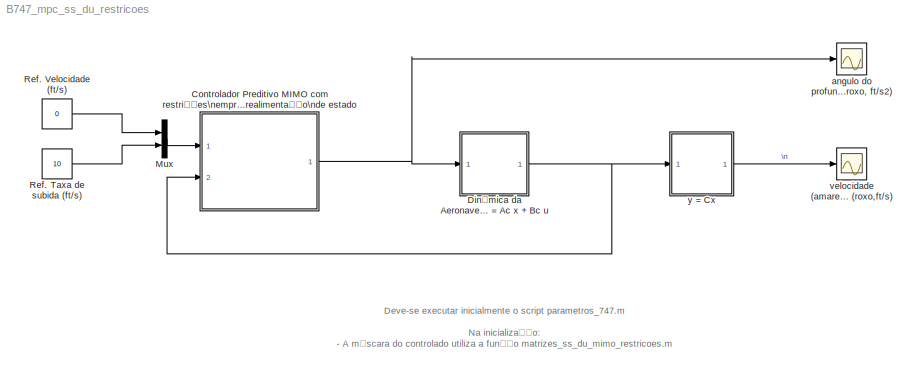
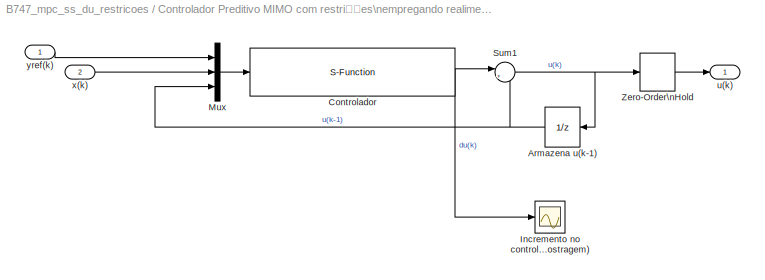
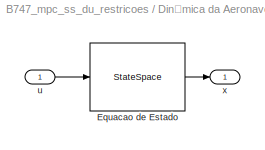
MODEL B747_mpc_ss_du_restricoes
KIND model
BLOCK [SubSystem] Controlador Preditivo MIMO com restrições\nempregando realimentação\nde estado
  FunctionWithSeparateData = off
  MaskCallbackString = ||||||||||
  MaskEnableString = on,on,on,on,on,on,on,on,on,on,on
  MaskHideContents = off
  MaskIconFrame = on
  MaskIconOpaque = on
  MaskIconRotate = none
  MaskIconUnits = autoscale
  MaskInitialization = [Phi,Gn,Hqp,Aqp] = matrizes_ss_du_mimo_restricoes(A,B,C,N,M,mu,rho);\nn = size(A,1);\np = size(B,2);\nq = size(C,1);\numin = ulim(:,1);\numax = ulim(:,2);\ndumin = dulim(:,1);\ndumax = dulim(:,2);\nymin = ylim(:,1);\nymax = ylim(:,2);
  MaskPortRotate = default
  MaskPromptString = Pesos dos controle (rho) (p x 1)|Pesos das saídas mu (q x 1)|Horizonte de Predição (N)|Horizonte de Controle (M)|Matriz A (n x n)|Matriz B (n x p)|Matriz C (q x n)|[dumin, dumax] (p x 2)|[umin, umax] (p x 2)|[ymin, ymax] (q x 2)|Periodo de amostragem
  MaskStyleString = edit,edit,edit,edit,edit,edit,edit,edit,edit,edit,edit
  MaskToolTipString = on,on,on,on,on,on,on,on,on,on,on
  MaskTunableValueString = on,on,on,on,on,on,on,on,on,on,on
  MaskValueString = [1;1]|[1;1]|20|10|A|B|C|[-inf inf;-inf inf]|[-inf inf;-inf inf]|[-inf inf;-inf inf]|T
  MaskVariables = rho=@1;mu=@2;N=@3;M=@4;A=@5;B=@6;C=@7;dulim=@8;ulim=@9;ylim=@10;T=@11;
  MaskVisibilityString = on,on,on,on,on,on,on,on,on,on,on
  MinAlgLoopOccurrences = off
  Opaque = off
  Ports = [2, 1]
  PropExecContextOutsideSubsystem = off
  RTWSystemCode = Auto
  RequestExecContextInheritance = off
  SID = 48
BLOCK [UnitDelay] Controlador Preditivo MIMO com restrições\nempregando realimentação\nde estado/Armazena u(k-1)
  SID = 51
  SampleTime = T
BLOCK [S-Function] Controlador Preditivo MIMO com restrições\nempregando realimentação\nde estado/Controlador
  EnableBusSupport = off
  FunctionName = mpc_ss_du_mimo_restricoes
  Parameters = Phi,Gn,Hqp,Aqp,dumax,dumin,umax,umin,ymax,ymin,p,q,n,M,N,T
  Ports = [1, 1]
  SID = 52
BLOCK [Scope] Controlador Preditivo MIMO com restrições\nempregando realimentação\nde estado/Incremento no controle du\n(volts//período de amostragem)
  DataFormat = StructureWithTime
  Floating = off
  NumInputPorts = 1
  Ports = [1]
  SID = 53
  ShowLegends = off
  TimeRange = 2
  YMax = 0.2
  YMin = -0.3
  ZoomMode = xonly
BLOCK [Mux] Controlador Preditivo MIMO com restrições\nempregando realimentação\nde estado/Mux
  DisplayOption = bar
  Inputs = 3
  Ports = [3, 1]
  SID = 54
BLOCK [Sum] Controlador Preditivo MIMO com restrições\nempregando realimentação\nde estado/Sum1
  IconShape = round
  Inputs = |++
  Ports = [2, 1]
  SID = 55
BLOCK [ZeroOrderHold] Controlador Preditivo MIMO com restrições\nempregando realimentação\nde estado/Zero-Order\nHold
  SID = 56
  SampleTime = T
BLOCK [Outport] Controlador Preditivo MIMO com restrições\nempregando realimentação\nde estado/u(k)
  IconDisplay = Port number
  SID = 57
BLOCK [Inport] Controlador Preditivo MIMO com restrições\nempregando realimentação\nde estado/x(k)
  IconDisplay = Port number
  Port = 2
  SID = 50
BLOCK [Inport] Controlador Preditivo MIMO com restrições\nempregando realimentação\nde estado/yref(k)
  IconDisplay = Port number
  SID = 49
BLOCK [SubSystem] Dinâmica da Aeronave\ndx//dt = Ac x + Bc u
  FunctionWithSeparateData = off
  MaskHideContents = off
  MinAlgLoopOccurrences = off
  Opaque = off
  Ports = [1, 1]
  PropExecContextOutsideSubsystem = off
  RTWSystemCode = Auto
  RequestExecContextInheritance = off
  SID = 11
BLOCK [StateSpace] Dinâmica da Aeronave\ndx//dt = Ac x + Bc u/Equacao de Estado
  A = Ac
  B = Bc
  C = eye(size(A,1),size(A,1))
  D = zeros(size(A,1),size(B,2))
  SID = 13
  X0 = zeros(size(A,1),1)
BLOCK [Inport] Dinâmica da Aeronave\ndx//dt = Ac x + Bc u/u
  IconDisplay = Port number
  SID = 12
BLOCK [Outport] Dinâmica da Aeronave\ndx//dt = Ac x + Bc u/x
  IconDisplay = Port number
  SID = 14
BLOCK [Mux] Mux
  DisplayOption = bar
  Inputs = 2
  Ports = [2, 1]
  SID = 15
BLOCK [Constant] Ref. Taxa de subida (ft//s)
  SID = 36
  Value = 10
BLOCK [Constant] Ref. Velocidade (ft//s)
  SID = 37
  Value = 0
BLOCK [Scope] angulo do profundor (amarelo, crad)\ntração específica (roxo, ft//s2)
  Floating = off
  LimitDataPoints = off
  NumInputPorts = 1
  Ports = [1]
  SID = 40
  SaveName = y1
  ShowLegends = off
  TimeRange = 10
  YMax = 3
  ZoomMode = yonly
BLOCK [Scope] velocidade (amarelo,ft//s),\ntaxa de subida (roxo,ft//s)
  Floating = off
  LimitDataPoints = off
  NumInputPorts = 1
  Ports = [1]
  SID = 43
  SaveName = y
  ShowLegends = off
  TimeRange = 10
  YMax = 12
  YMin = -2
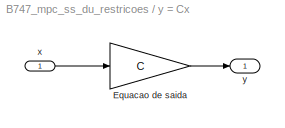
BLOCK [SubSystem] y = Cx
  FunctionWithSeparateData = off
  MaskHideContents = off
  MinAlgLoopOccurrences = off
  Opaque = off
  Ports = [1, 1]
  PropExecContextOutsideSubsystem = off
  RTWSystemCode = Auto
  RequestExecContextInheritance = off
  SID = 44
BLOCK [Gain] y = Cx/Equacao de saida
  Gain = C
  Multiplication = Matrix(K*u)
  SID = 46
BLOCK [Inport] y = Cx/x
  IconDisplay = Port number
  SID = 45
BLOCK [Outport] y = Cx/y
  IconDisplay = Port number
  SID = 47
ANNOTATION (root): Deve-se executar inicialmente o script parametros_747.m\n\nNa inicialização:\n- A máscara do controlado utiliza a função matrizes_ss_du_mimo_restricoes.m
NET Controlador Preditivo MIMO com restrições\nempregando realimentação\nde estado/Armazena u(k-1):1 -> Controlador Preditivo MIMO com restrições\nempregando realimentação\nde estado/Mux:3, Controlador Preditivo MIMO com restrições\nempregando realimentação\nde estado/Sum1:2
NET Controlador Preditivo MIMO com restrições\nempregando realimentação\nde estado/Controlador:1 -> Controlador Preditivo MIMO com restrições\nempregando realimentação\nde estado/Incremento no controle du\n(volts//período de amostragem):1, Controlador Preditivo MIMO com restrições\nempregando realimentação\nde estado/Sum1:1
LINE Controlador Preditivo MIMO com restrições\nempregando realimentação\nde estado/Mux:1 -> Controlador Preditivo MIMO com restrições\nempregando realimentação\nde estado/Controlador:1
NET Controlador Preditivo MIMO com restrições\nempregando realimentação\nde estado/Sum1:1 -> Controlador Preditivo MIMO com restrições\nempregando realimentação\nde estado/Armazena u(k-1):1, Controlador Preditivo MIMO com restrições\nempregando realimentação\nde estado/Zero-Order\nHold:1
LINE Controlador Preditivo MIMO com restrições\nempregando realimentação\nde estado/Zero-Order\nHold:1 -> Controlador Preditivo MIMO com restrições\nempregando realimentação\nde estado/u(k):1
LINE Controlador Preditivo MIMO com restrições\nempregando realimentação\nde estado/x(k):1 -> Controlador Preditivo MIMO com restrições\nempregando realimentação\nde estado/Mux:2
LINE Controlador Preditivo MIMO com restrições\nempregando realimentação\nde estado/yref(k):1 -> Controlador Preditivo MIMO com restrições\nempregando realimentação\nde estado/Mux:1
NET Controlador Preditivo MIMO com restrições\nempregando realimentação\nde estado:1 -> Dinâmica da Aeronave\ndx//dt = Ac x + Bc u:1, angulo do profundor (amarelo, crad)\ntração específica (roxo, ft//s2):1
LINE Dinâmica da Aeronave\ndx//dt = Ac x + Bc u/Equacao de Estado:1 -> Dinâmica da Aeronave\ndx//dt = Ac x + Bc u/x:1
LINE Dinâmica da Aeronave\ndx//dt = Ac x + Bc u/u:1 -> Dinâmica da Aeronave\ndx//dt = Ac x + Bc u/Equacao de Estado:1
NET Dinâmica da Aeronave\ndx//dt = Ac x + Bc u:1 -> Controlador Preditivo MIMO com restrições\nempregando realimentação\nde estado:2, y = Cx:1
LINE Mux:1 -> Controlador Preditivo MIMO com restrições\nempregando realimentação\nde estado:1
LINE Ref. Taxa de subida (ft//s):1 -> Mux:2
LINE Ref. Velocidade (ft//s):1 -> Mux:1
LINE y = Cx/Equacao de saida:1 -> y = Cx/y:1
LINE y = Cx/x:1 -> y = Cx/Equacao de saida:1
LINE y = Cx:1 -> velocidade (amarelo,ft//s),\ntaxa de subida (roxo,ft//s):1
note: NET lines group one-source signal fan-out (src -> all destinations, sorted); 1:1 wires keep LINE
